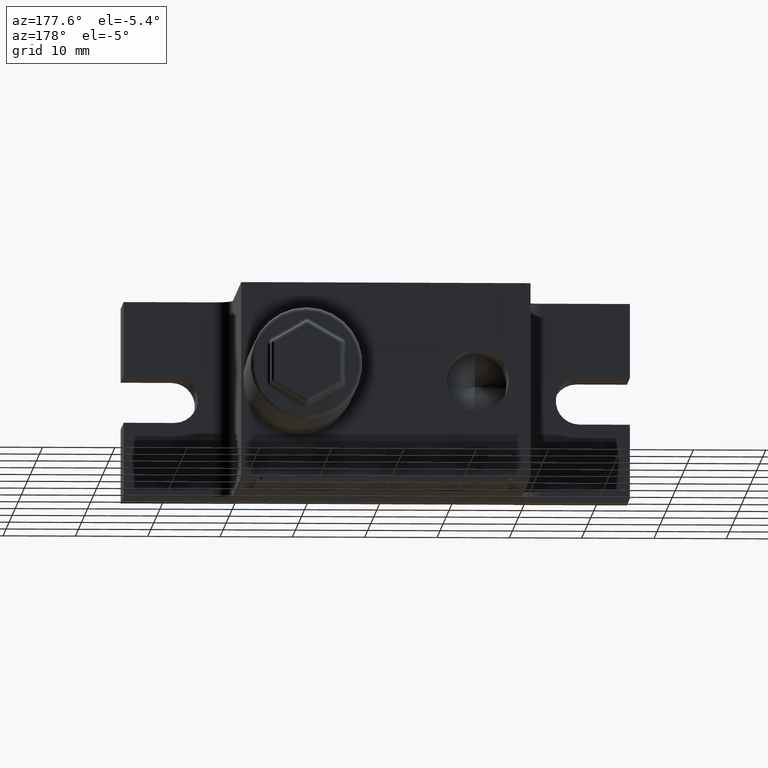
[diagram: clean part render]
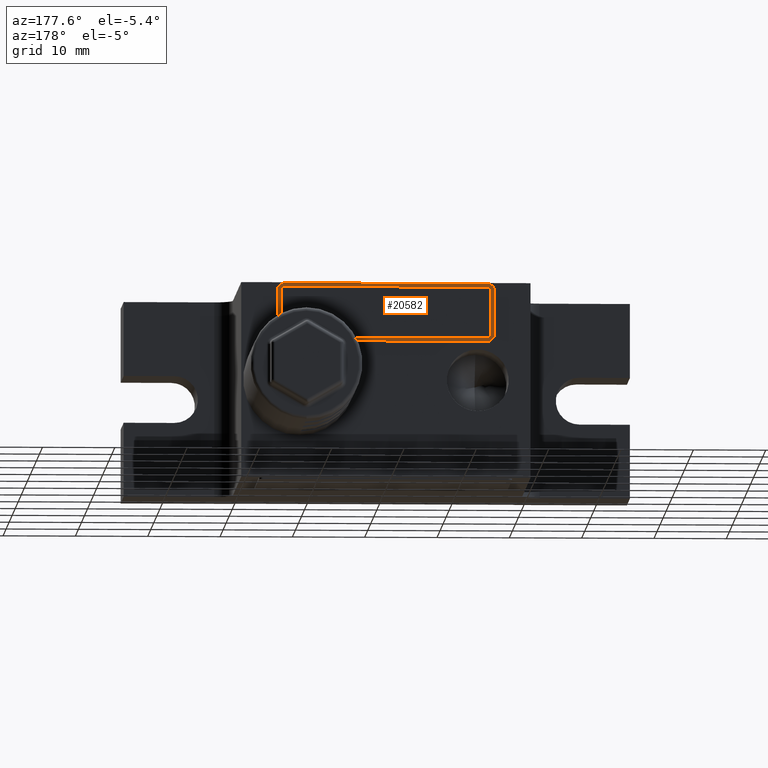
[diagram: same view with one face highlighted and labeled with its STEP entity id]
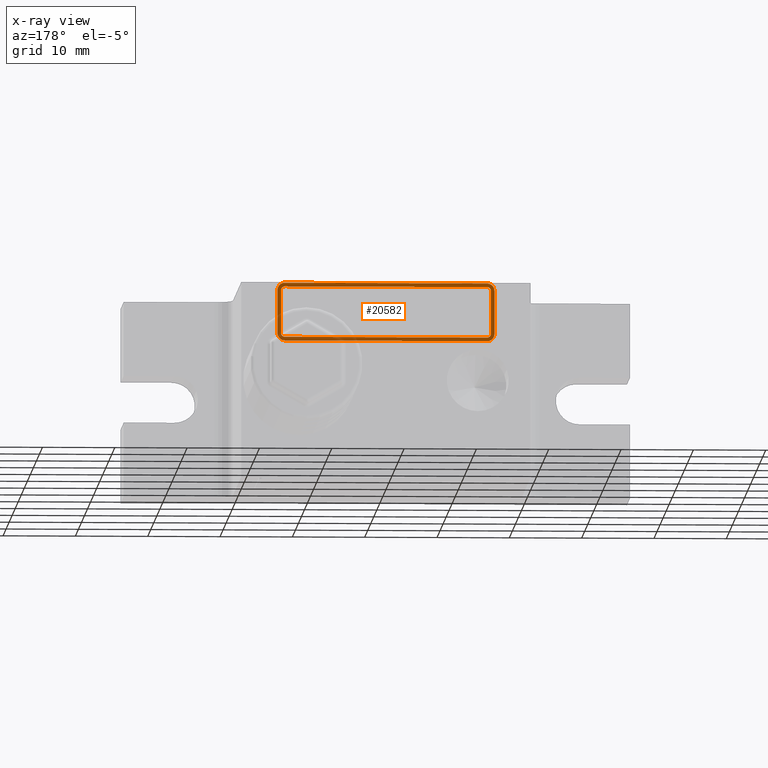
[diagram: x-ray of the same camera — body ghosted, the highlighted face saturated]
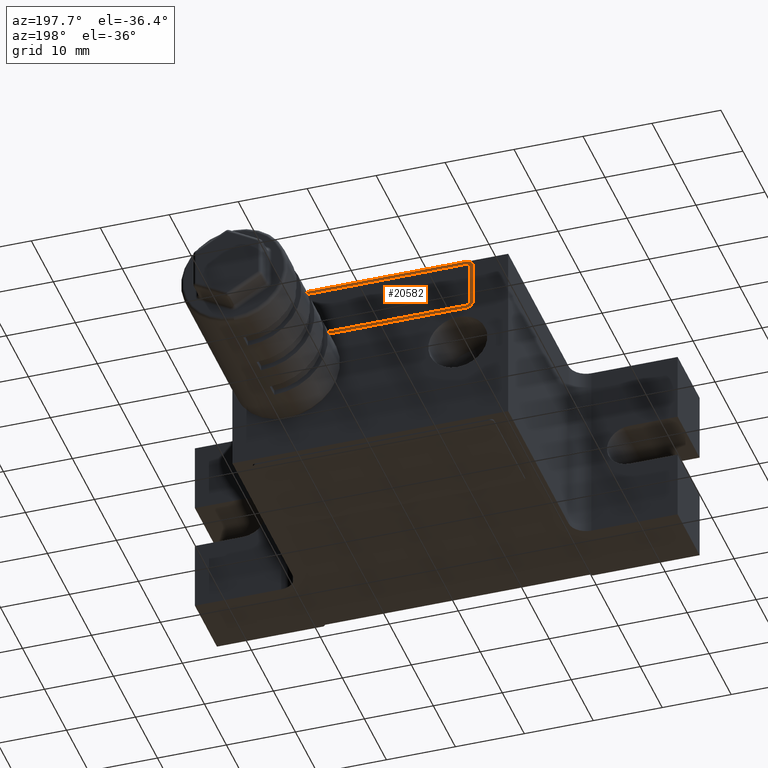
[diagram: same view with one face highlighted and labeled with its STEP entity id]
A machine part, auxiliary view. The second image highlights one B-rep face of the part: STEP entity #20582.
The next image is the same camera in x-ray: the body ghosted, the highlighted face saturated — about 19% of this face is hidden behind the body in this view.
A second angle (auxiliary view) of the same face is appended — the face is thin or edge-on in the first view.
In plain terms, the highlighted planar face has unit normal (-0, 1, 0).
Its self-contained STEP definition (entity closure, byte-faithful):
#9 = CARTESIAN_POINT ( 'NONE',  ( 14.00000000000000000, 20.19999999999999900, 5.899999999999999500 ) ) ;
#204 = DIRECTION ( 'NONE',  ( 1.000000000000000000, 0.0000000000000000000, 0.0000000000000000000 ) ) ;
#299 = CARTESIAN_POINT ( 'NONE',  ( -14.00000000000000000, 20.19999999999999900, 6.400000000000000400 ) ) ;
#331 = CARTESIAN_POINT ( 'NONE',  ( -14.00000000000000000, 20.19999999999999900, 6.400000000000000400 ) ) ;
#528 = CARTESIAN_POINT ( 'NONE',  ( -14.50000000000000000, 20.19999999999999900, 6.400000000000000400 ) ) ;
#680 = CARTESIAN_POINT ( 'NONE',  ( 14.00000000000000000, 20.19999999999999900, 12.40000000000000000 ) ) ;
#986 = CARTESIAN_POINT ( 'NONE',  ( 15.00000000000000000, 20.19999999999999900, 6.400000000000000400 ) ) ;
#1024 = ORIENTED_EDGE ( 'NONE', *, *, #16598, .F. ) ;
#1275 = VECTOR ( 'NONE', #22128, 1000.000000000000000 ) ;
#1658 = ORIENTED_EDGE ( 'NONE', *, *, #6648, .F. ) ;
#1929 = DIRECTION ( 'NONE',  ( 0.0000000000000000000, 0.0000000000000000000, 1.000000000000000000 ) ) ;
#1937 = CARTESIAN_POINT ( 'NONE',  ( 15.00000000000000000, 20.19999999999999900, 5.400000000000000400 ) ) ;
#2160 = CARTESIAN_POINT ( 'NONE',  ( 14.00000000000000000, 20.19999999999999900, 6.400000000000000400 ) ) ;
#2300 = EDGE_CURVE ( 'NONE', #10413, #20361, #16717, .T. ) ;
#2980 = CIRCLE ( 'NONE', #11812, 0.9999999999999991100 ) ;
#3110 = ORIENTED_EDGE ( 'NONE', *, *, #18542, .T. ) ;
#3156 = CARTESIAN_POINT ( 'NONE',  ( -14.00000000000000000, 20.19999999999999900, 12.90000000000000000 ) ) ;
#3308 = VERTEX_POINT ( 'NONE', #3810 ) ;
#3417 = ORIENTED_EDGE ( 'NONE', *, *, #18053, .T. ) ;
#3442 = EDGE_CURVE ( 'NONE', #18046, #15076, #22687, .T. ) ;
#3549 = EDGE_CURVE ( 'NONE', #19180, #19069, #15520, .T. ) ;
#3810 = CARTESIAN_POINT ( 'NONE',  ( 14.00000000000000000, 20.19999999999999900, 13.40000000000000000 ) ) ;
#4098 = DIRECTION ( 'NONE',  ( 1.000000000000000000, 0.0000000000000000000, 0.0000000000000000000 ) ) ;
#4379 = LINE ( 'NONE', #9290, #18917 ) ;
#4452 = CIRCLE ( 'NONE', #8777, 0.5000000000000004400 ) ;
#4528 = DIRECTION ( 'NONE',  ( 1.000000000000000000, 0.0000000000000000000, 0.0000000000000000000 ) ) ;
#4719 = ORIENTED_EDGE ( 'NONE', *, *, #15518, .T. ) ;
#4728 = CARTESIAN_POINT ( 'NONE',  ( -15.00000000000000000, 20.19999999999999900, 5.400000000000000400 ) ) ;
#4915 = EDGE_CURVE ( 'NONE', #15076, #12848, #9862, .T. ) ;
#4930 = CARTESIAN_POINT ( 'NONE',  ( -15.00000000000000000, 20.19999999999999900, 6.400000000000000400 ) ) ;
#5049 = VECTOR ( 'NONE', #7709, 1000.000000000000000 ) ;
#5143 = CARTESIAN_POINT ( 'NONE',  ( 14.50000000000000000, 20.19999999999999900, 12.40000000000000000 ) ) ;
#5621 = CARTESIAN_POINT ( 'NONE',  ( -15.00000000000000000, 20.19999999999999900, 13.40000000000000000 ) ) ;
#5818 = CARTESIAN_POINT ( 'NONE',  ( -14.00000000000000000, 20.19999999999999900, 12.90000000000000000 ) ) ;
#5842 = AXIS2_PLACEMENT_3D ( 'NONE', #2160, #20114, #11137 ) ;
#5865 = EDGE_CURVE ( 'NONE', #11336, #10413, #7279, .T. ) ;
#5922 = CARTESIAN_POINT ( 'NONE',  ( 14.00000000000000000, 20.19999999999999900, 5.400000000000000400 ) ) ;
#6177 = LINE ( 'NONE', #1937, #21035 ) ;
#6484 = DIRECTION ( 'NONE',  ( 1.000000000000000000, 0.0000000000000000000, 0.0000000000000000000 ) ) ;
#6648 = EDGE_CURVE ( 'NONE', #16219, #19180, #15796, .T. ) ;
#6728 = VECTOR ( 'NONE', #19193, 1000.000000000000000 ) ;
#6957 = DIRECTION ( 'NONE',  ( -2.891205793294680300E-016, 0.0000000000000000000, -1.000000000000000000 ) ) ;
#7279 = LINE ( 'NONE', #4728, #6728 ) ;
#7420 = VERTEX_POINT ( 'NONE', #21370 ) ;
#7709 = DIRECTION ( 'NONE',  ( 1.000000000000000000, 0.0000000000000000000, -1.548860246407865100E-017 ) ) ;
#8084 = VECTOR ( 'NONE', #1929, 1000.000000000000000 ) ;
#8097 = CIRCLE ( 'NONE', #10946, 0.9999999999999991100 ) ;
#8120 = ORIENTED_EDGE ( 'NONE', *, *, #5865, .T. ) ;
#8307 = ORIENTED_EDGE ( 'NONE', *, *, #15814, .T. ) ;
#8405 = VECTOR ( 'NONE', #6957, 1000.000000000000000 ) ;
#8777 = AXIS2_PLACEMENT_3D ( 'NONE', #14056, #19500, #17732 ) ;
#8979 = CARTESIAN_POINT ( 'NONE',  ( 14.00000000000000000, 20.19999999999999900, 6.400000000000000400 ) ) ;
#9157 = DIRECTION ( 'NONE',  ( 0.0000000000000000000, 1.000000000000000000, 0.0000000000000000000 ) ) ;
#9189 = CARTESIAN_POINT ( 'NONE',  ( -15.00000000000000000, 20.19999999999999900, 5.400000000000000400 ) ) ;
#9273 = ORIENTED_EDGE ( 'NONE', *, *, #3442, .F. ) ;
#9290 = CARTESIAN_POINT ( 'NONE',  ( -15.00000000000000000, 20.19999999999999900, 13.40000000000000000 ) ) ;
#9333 = AXIS2_PLACEMENT_3D ( 'NONE', #331, #22185, #4098 ) ;
#9351 = CARTESIAN_POINT ( 'NONE',  ( 14.00000000000000000, 20.19999999999999900, 5.899999999999999500 ) ) ;
#9506 = LINE ( 'NONE', #12885, #8084 ) ;
#9589 = FACE_OUTER_BOUND ( 'NONE', #11292, .T. ) ;
#9862 = LINE ( 'NONE', #5818, #5049 ) ;
#9950 = AXIS2_PLACEMENT_3D ( 'NONE', #299, #9157, #13089 ) ;
#10053 = CARTESIAN_POINT ( 'NONE',  ( -14.00000000000000000, 20.19999999999999900, 13.40000000000000000 ) ) ;
#10287 = ORIENTED_EDGE ( 'NONE', *, *, #18073, .T. ) ;
#10413 = VERTEX_POINT ( 'NONE', #21156 ) ;
#10634 = VECTOR ( 'NONE', #21956, 1000.000000000000000 ) ;
#10778 = DIRECTION ( 'NONE',  ( 0.0000000000000000000, 1.000000000000000000, 0.0000000000000000000 ) ) ;
#10910 = DIRECTION ( 'NONE',  ( -2.168404344971010100E-016, 0.0000000000000000000, -1.000000000000000000 ) ) ;
#10925 = PLANE ( 'NONE',  #17664 ) ;
#10946 = AXIS2_PLACEMENT_3D ( 'NONE', #680, #20861, #4528 ) ;
#11137 = DIRECTION ( 'NONE',  ( 1.000000000000000000, 0.0000000000000000000, 0.0000000000000000000 ) ) ;
#11161 = DIRECTION ( 'NONE',  ( 1.000000000000000000, 0.0000000000000000000, 0.0000000000000000000 ) ) ;
#11292 = EDGE_LOOP ( 'NONE', ( #8120, #14291, #3110, #4719, #10287, #13173, #8307, #3417 ) ) ;
#11336 = VERTEX_POINT ( 'NONE', #5922 ) ;
#11339 = CIRCLE ( 'NONE', #5842, 0.5000000000000004400 ) ;
#11812 = AXIS2_PLACEMENT_3D ( 'NONE', #8979, #10778, #23583 ) ;
#11967 = DIRECTION ( 'NONE',  ( 1.000000000000000000, 0.0000000000000000000, 0.0000000000000000000 ) ) ;
#12256 = CARTESIAN_POINT ( 'NONE',  ( 14.50000000000000000, 20.19999999999999900, 12.40000000000000000 ) ) ;
#12334 = VERTEX_POINT ( 'NONE', #10053 ) ;
#12833 = AXIS2_PLACEMENT_3D ( 'NONE', #15465, #17221, #6484 ) ;
#12848 = VERTEX_POINT ( 'NONE', #18350 ) ;
#12885 = CARTESIAN_POINT ( 'NONE',  ( -14.50000000000000000, 20.19999999999999900, 6.400000000000000400 ) ) ;
#12965 = CARTESIAN_POINT ( 'NONE',  ( 14.50000000000000000, 20.19999999999999900, 6.400000000000000400 ) ) ;
#13089 = DIRECTION ( 'NONE',  ( 1.000000000000000000, 0.0000000000000000000, 0.0000000000000000000 ) ) ;
#13173 = ORIENTED_EDGE ( 'NONE', *, *, #21882, .T. ) ;
#13492 = CARTESIAN_POINT ( 'NONE',  ( -14.00000000000000000, 20.19999999999999900, 5.899999999999999500 ) ) ;
#13796 = DIRECTION ( 'NONE',  ( 0.0000000000000000000, 1.000000000000000000, 0.0000000000000000000 ) ) ;
#13863 = CIRCLE ( 'NONE', #14565, 0.9999999999999991100 ) ;
#13912 = VERTEX_POINT ( 'NONE', #12965 ) ;
#13990 = EDGE_CURVE ( 'NONE', #13912, #16219, #11339, .T. ) ;
#14056 = CARTESIAN_POINT ( 'NONE',  ( 14.00000000000000000, 20.19999999999999900, 12.40000000000000000 ) ) ;
#14291 = ORIENTED_EDGE ( 'NONE', *, *, #2300, .T. ) ;
#14565 = AXIS2_PLACEMENT_3D ( 'NONE', #23086, #13796, #11967 ) ;
#15076 = VERTEX_POINT ( 'NONE', #3156 ) ;
#15465 = CARTESIAN_POINT ( 'NONE',  ( -14.00000000000000000, 20.19999999999999900, 12.40000000000000000 ) ) ;
#15518 = EDGE_CURVE ( 'NONE', #20141, #12334, #13863, .T. ) ;
#15520 = CIRCLE ( 'NONE', #9950, 0.5000000000000004400 ) ;
#15796 = LINE ( 'NONE', #9351, #1275 ) ;
#15814 = EDGE_CURVE ( 'NONE', #7420, #23119, #6177, .T. ) ;
#16219 = VERTEX_POINT ( 'NONE', #9 ) ;
#16598 = EDGE_CURVE ( 'NONE', #12848, #20938, #4452, .T. ) ;
#16717 = CIRCLE ( 'NONE', #9333, 0.9999999999999991100 ) ;
#17079 = EDGE_CURVE ( 'NONE', #20938, #13912, #20681, .T. ) ;
#17221 = DIRECTION ( 'NONE',  ( 0.0000000000000000000, 1.000000000000000000, 0.0000000000000000000 ) ) ;
#17664 = AXIS2_PLACEMENT_3D ( 'NONE', #5621, #20216, #204 ) ;
#17732 = DIRECTION ( 'NONE',  ( 1.000000000000000000, 0.0000000000000000000, 0.0000000000000000000 ) ) ;
#17971 = CARTESIAN_POINT ( 'NONE',  ( -14.50000000000000000, 20.19999999999999900, 12.40000000000000000 ) ) ;
#18046 = VERTEX_POINT ( 'NONE', #17971 ) ;
#18053 = EDGE_CURVE ( 'NONE', #23119, #11336, #2980, .T. ) ;
#18073 = EDGE_CURVE ( 'NONE', #12334, #3308, #4379, .T. ) ;
#18350 = CARTESIAN_POINT ( 'NONE',  ( 14.00000000000000000, 20.19999999999999900, 12.90000000000000000 ) ) ;
#18516 = EDGE_CURVE ( 'NONE', #19069, #18046, #9506, .T. ) ;
#18542 = EDGE_CURVE ( 'NONE', #20361, #20141, #20950, .T. ) ;
#18677 = ORIENTED_EDGE ( 'NONE', *, *, #3549, .F. ) ;
#18898 = EDGE_LOOP ( 'NONE', ( #20378, #22927, #1024, #19392, #9273, #23117, #18677, #1658 ) ) ;
#18917 = VECTOR ( 'NONE', #11161, 1000.000000000000000 ) ;
#18987 = FACE_BOUND ( 'NONE', #18898, .T. ) ;
#19069 = VERTEX_POINT ( 'NONE', #528 ) ;
#19180 = VERTEX_POINT ( 'NONE', #13492 ) ;
#19193 = DIRECTION ( 'NONE',  ( -1.000000000000000000, 0.0000000000000000000, 0.0000000000000000000 ) ) ;
#19392 = ORIENTED_EDGE ( 'NONE', *, *, #4915, .F. ) ;
#19500 = DIRECTION ( 'NONE',  ( 0.0000000000000000000, 1.000000000000000000, 0.0000000000000000000 ) ) ;
#20114 = DIRECTION ( 'NONE',  ( 0.0000000000000000000, 1.000000000000000000, 0.0000000000000000000 ) ) ;
#20141 = VERTEX_POINT ( 'NONE', #22307 ) ;
#20216 = DIRECTION ( 'NONE',  ( -0.0000000000000000000, 1.000000000000000000, 0.0000000000000000000 ) ) ;
#20361 = VERTEX_POINT ( 'NONE', #4930 ) ;
#20378 = ORIENTED_EDGE ( 'NONE', *, *, #13990, .F. ) ;
#20582 = ADVANCED_FACE ( 'NONE', ( #18987, #9589 ), #10925, .T. ) ;
#20681 = LINE ( 'NONE', #5143, #8405 ) ;
#20861 = DIRECTION ( 'NONE',  ( 0.0000000000000000000, 1.000000000000000000, 0.0000000000000000000 ) ) ;
#20938 = VERTEX_POINT ( 'NONE', #12256 ) ;
#20950 = LINE ( 'NONE', #9189, #10634 ) ;
#21035 = VECTOR ( 'NONE', #10910, 1000.000000000000000 ) ;
#21156 = CARTESIAN_POINT ( 'NONE',  ( -14.00000000000000000, 20.19999999999999900, 5.400000000000000400 ) ) ;
#21370 = CARTESIAN_POINT ( 'NONE',  ( 15.00000000000000000, 20.19999999999999900, 12.40000000000000000 ) ) ;
#21882 = EDGE_CURVE ( 'NONE', #3308, #7420, #8097, .T. ) ;
#21956 = DIRECTION ( 'NONE',  ( 2.168404344971010100E-016, 0.0000000000000000000, 1.000000000000000000 ) ) ;
#22128 = DIRECTION ( 'NONE',  ( -1.000000000000000000, 0.0000000000000000000, 1.858632295689434900E-016 ) ) ;
#22185 = DIRECTION ( 'NONE',  ( 0.0000000000000000000, 1.000000000000000000, 0.0000000000000000000 ) ) ;
#22307 = CARTESIAN_POINT ( 'NONE',  ( -15.00000000000000000, 20.19999999999999900, 12.40000000000000000 ) ) ;
#22687 = CIRCLE ( 'NONE', #12833, 0.5000000000000004400 ) ;
#22927 = ORIENTED_EDGE ( 'NONE', *, *, #17079, .F. ) ;
#23086 = CARTESIAN_POINT ( 'NONE',  ( -14.00000000000000000, 20.19999999999999900, 12.40000000000000000 ) ) ;
#23117 = ORIENTED_EDGE ( 'NONE', *, *, #18516, .F. ) ;
#23119 = VERTEX_POINT ( 'NONE', #986 ) ;
#23583 = DIRECTION ( 'NONE',  ( 1.000000000000000000, 0.0000000000000000000, 0.0000000000000000000 ) ) ;